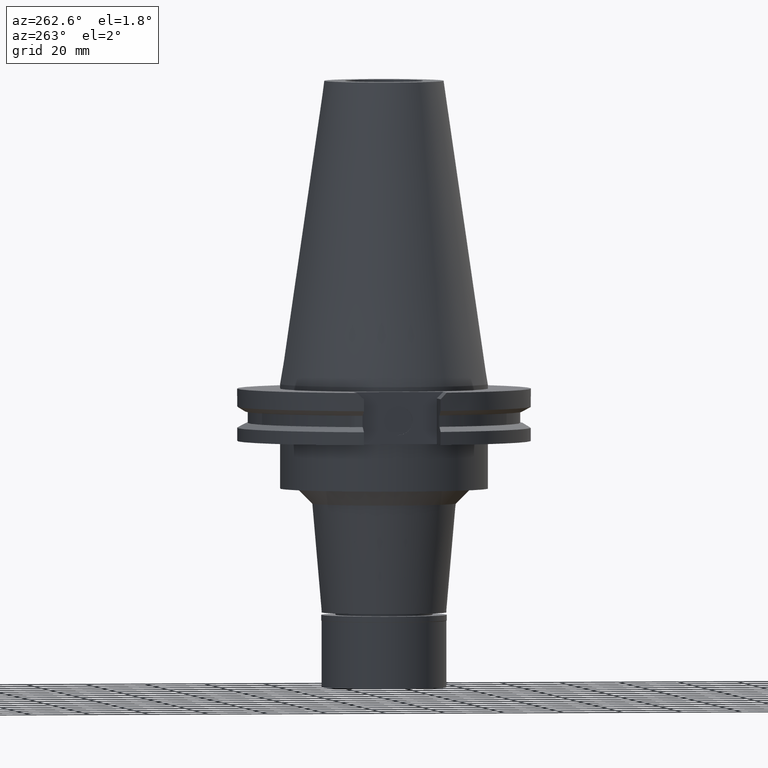
[diagram: clean part render]
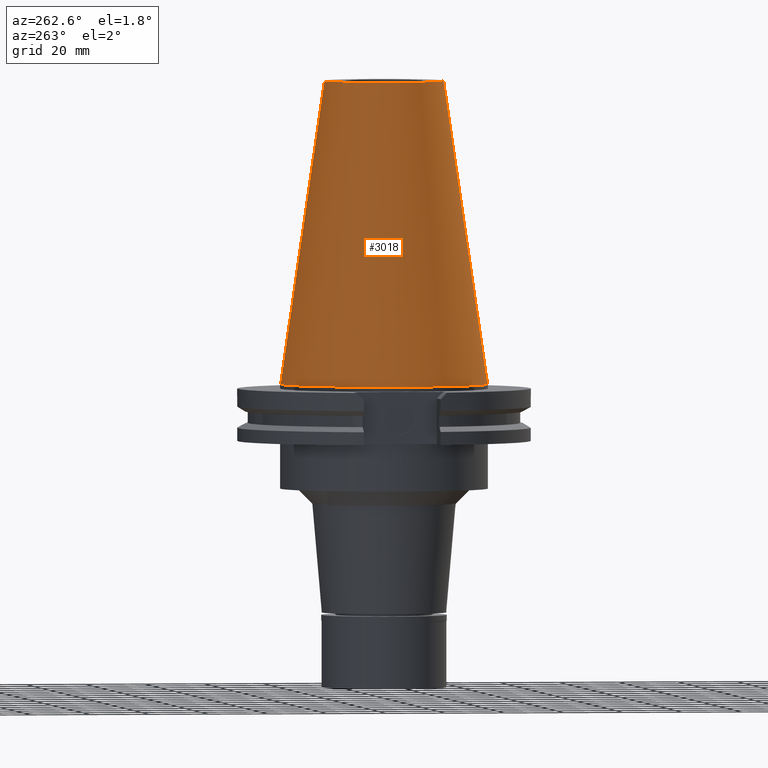
[diagram: same view with one face highlighted and labeled with its STEP entity id]
A machine part, auxiliary view. The second image highlights one B-rep face of the part: STEP entity #3018.
In plain terms, the highlighted conical surface has half-angle 8.297 deg.
Its self-contained STEP definition (entity closure, byte-faithful):
#16 = LINE ( 'NONE', #1035, #2073 ) ;
#106 = CARTESIAN_POINT ( 'NONE',  ( 0.0000000000000000000, -20.10832422388000040, 101.5999999999999943 ) ) ;
#129 = AXIS2_PLACEMENT_3D ( 'NONE', #1257, #3351, #2369 ) ;
#149 = CARTESIAN_POINT ( 'NONE',  ( 0.0000000000000000000, -34.92499999999999716, 4.618527782441000579E-13 ) ) ;
#391 = AXIS2_PLACEMENT_3D ( 'NONE', #3044, #1268, #2536 ) ;
#599 = ORIENTED_EDGE ( 'NONE', *, *, #979, .F. ) ;
#633 = VERTEX_POINT ( 'NONE', #106 ) ;
#638 = FACE_OUTER_BOUND ( 'NONE', #1774, .T. ) ;
#780 = CONICAL_SURFACE ( 'NONE', #1387, 27.51666211194000056, 0.1448125860318199565 ) ;
#839 = CARTESIAN_POINT ( 'NONE',  ( 0.0000000000000000000, 20.10832422387000307, 101.5999999999999943 ) ) ;
#923 = EDGE_CURVE ( 'NONE', #2007, #1997, #3317, .T. ) ;
#979 = EDGE_CURVE ( 'NONE', #633, #2007, #16, .T. ) ;
#1027 = EDGE_CURVE ( 'NONE', #3127, #1997, #2645, .T. ) ;
#1035 = CARTESIAN_POINT ( 'NONE',  ( 0.0000000000000000000, -20.10832422387000307, 101.5999999999999943 ) ) ;
#1257 = CARTESIAN_POINT ( 'NONE',  ( 0.0000000000000000000, 1.846767373113999857E-14, 101.5999999999999943 ) ) ;
#1268 = DIRECTION ( 'NONE',  ( 0.0000000000000000000, 0.0000000000000000000, -1.000000000000000000 ) ) ;
#1387 = AXIS2_PLACEMENT_3D ( 'NONE', #1675, #1637, #3183 ) ;
#1637 = DIRECTION ( 'NONE',  ( 0.0000000000000000000, 0.0000000000000000000, -1.000000000000000000 ) ) ;
#1651 = VECTOR ( 'NONE', #2661, 1000.000000000000114 ) ;
#1675 = CARTESIAN_POINT ( 'NONE',  ( 0.0000000000000000000, 1.846767373113999857E-14, 50.79999999999999716 ) ) ;
#1689 = ORIENTED_EDGE ( 'NONE', *, *, #1027, .T. ) ;
#1713 = CIRCLE ( 'NONE', #129, 20.10832422388000040 ) ;
#1739 = CARTESIAN_POINT ( 'NONE',  ( 0.0000000000000000000, 20.10832422388000040, 101.5999999999999943 ) ) ;
#1774 = EDGE_LOOP ( 'NONE', ( #2190, #599, #2727, #1689 ) ) ;
#1860 = DIRECTION ( 'NONE',  ( 0.0000000000000000000, -0.1443069799456937474, -0.9895329683941577192 ) ) ;
#1997 = VERTEX_POINT ( 'NONE', #2489 ) ;
#2007 = VERTEX_POINT ( 'NONE', #149 ) ;
#2073 = VECTOR ( 'NONE', #1860, 1000.000000000000114 ) ;
#2190 = ORIENTED_EDGE ( 'NONE', *, *, #923, .F. ) ;
#2369 = DIRECTION ( 'NONE',  ( 0.0000000000000000000, -1.000000000000000000, 0.0000000000000000000 ) ) ;
#2489 = CARTESIAN_POINT ( 'NONE',  ( 0.0000000000000000000, 34.92499999999999716, 4.618527782441000579E-13 ) ) ;
#2536 = DIRECTION ( 'NONE',  ( 0.0000000000000000000, -1.000000000000000000, 0.0000000000000000000 ) ) ;
#2645 = LINE ( 'NONE', #839, #1651 ) ;
#2661 = DIRECTION ( 'NONE',  ( 0.0000000000000000000, 0.1443069799456937474, -0.9895329683941577192 ) ) ;
#2727 = ORIENTED_EDGE ( 'NONE', *, *, #3238, .T. ) ;
#3018 = ADVANCED_FACE ( 'NONE', ( #638 ), #780, .T. ) ;
#3044 = CARTESIAN_POINT ( 'NONE',  ( 0.0000000000000000000, 1.846767373113999857E-14, 7.389644451905000534E-13 ) ) ;
#3127 = VERTEX_POINT ( 'NONE', #1739 ) ;
#3183 = DIRECTION ( 'NONE',  ( 0.0000000000000000000, -1.000000000000000000, 0.0000000000000000000 ) ) ;
#3238 = EDGE_CURVE ( 'NONE', #633, #3127, #1713, .T. ) ;
#3317 = CIRCLE ( 'NONE', #391, 34.92499999999999716 ) ;
#3351 = DIRECTION ( 'NONE',  ( 0.0000000000000000000, 0.0000000000000000000, -1.000000000000000000 ) ) ;